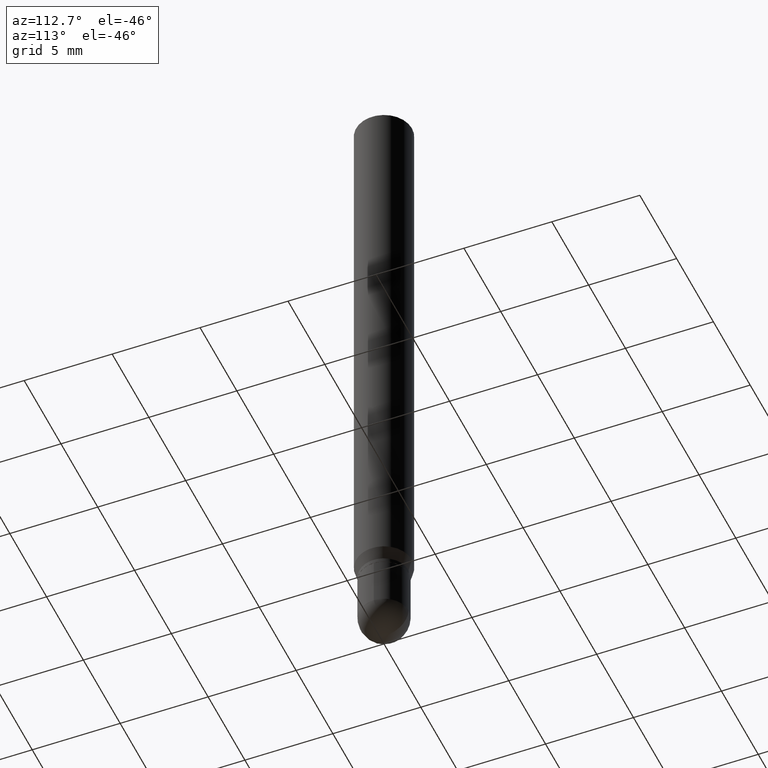
[diagram: clean part render]
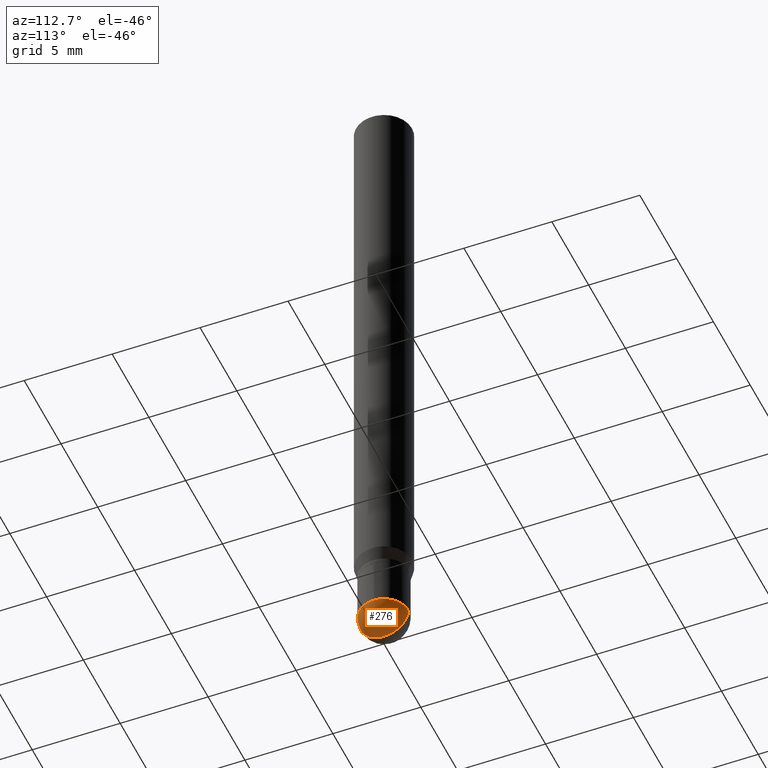
[diagram: same view with one face highlighted and labeled with its STEP entity id]
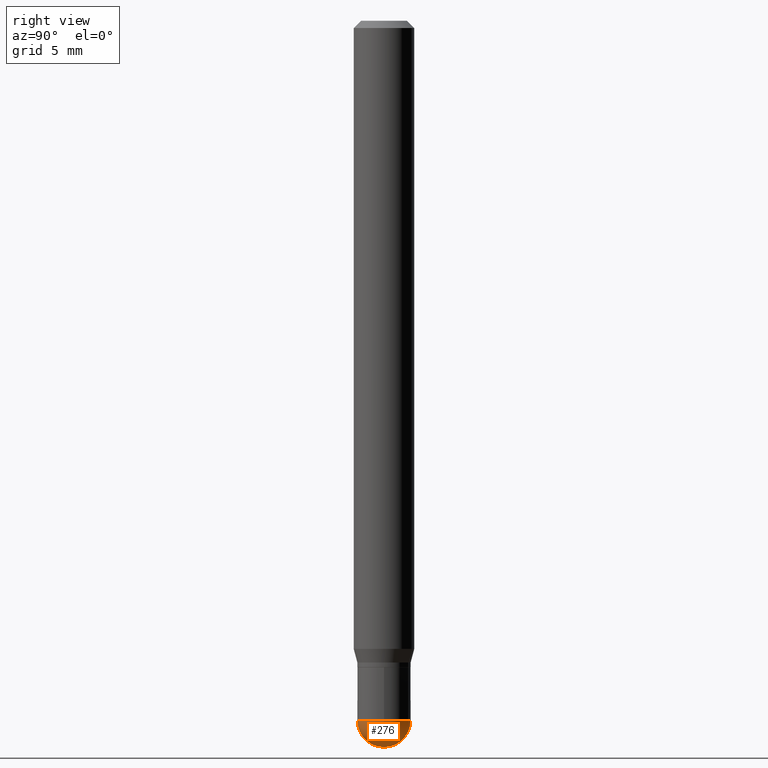
[diagram: same view with one face highlighted and labeled with its STEP entity id]
A machine part, auxiliary view. The second image highlights one B-rep face of the part: STEP entity #276.
A second angle (right view) of the same face is appended — the face is thin or edge-on in the first view.
In plain terms, the highlighted spherical surface has radius 1.397 mm.
Its self-contained STEP definition (entity closure, byte-faithful):
#2 = CIRCLE ( 'NONE', #295, 0.05500000000000000028 ) ;
#3 = AXIS2_PLACEMENT_3D ( 'NONE', #433, #318, #411 ) ;
#13 = VERTEX_POINT ( 'NONE', #342 ) ;
#20 = EDGE_CURVE ( 'NONE', #286, #442, #2, .T. ) ;
#48 = VERTEX_POINT ( 'NONE', #255 ) ;
#67 = AXIS2_PLACEMENT_3D ( 'NONE', #288, #396, #333 ) ;
#100 = DIRECTION ( 'NONE',  ( 1.000000000000000000, -6.982962677686262766E-15, 0.000000000000000000 ) ) ;
#112 = DIRECTION ( 'NONE',  ( -2.445468806185136597E-29, 3.491481338843145583E-15, 1.000000000000000000 ) ) ;
#115 = CIRCLE ( 'NONE', #234, 0.05500000000000000028 ) ;
#122 = ORIENTED_EDGE ( 'NONE', *, *, #259, .F. ) ;
#125 = EDGE_CURVE ( 'NONE', #442, #13, #115, .T. ) ;
#129 = EDGE_LOOP ( 'NONE', ( #122, #175, #280, #490 ) ) ;
#175 = ORIENTED_EDGE ( 'NONE', *, *, #261, .T. ) ;
#180 = DIRECTION ( 'NONE',  ( -2.445468806185136597E-29, 3.491481338843145583E-15, 1.000000000000000000 ) ) ;
#181 = CARTESIAN_POINT ( 'NONE',  ( 0.05500000000000000028, -5.237222008264716599E-15, -1.445000000000000062 ) ) ;
#234 = AXIS2_PLACEMENT_3D ( 'NONE', #274, #112, #511 ) ;
#237 = DIRECTION ( 'NONE',  ( 7.105427357601000281E-15, 1.000000000000000000, 0.000000000000000000 ) ) ;
#253 = AXIS2_PLACEMENT_3D ( 'NONE', #476, #450, #237 ) ;
#255 = CARTESIAN_POINT ( 'NONE',  ( 3.661148087391975640E-29, -5.247325344357685057E-15, -1.500000000000000222 ) ) ;
#259 = EDGE_CURVE ( 'NONE', #48, #286, #272, .T. ) ;
#261 = EDGE_CURVE ( 'NONE', #48, #13, #409, .T. ) ;
#272 = CIRCLE ( 'NONE', #3, 0.05500000000000005579 ) ;
#274 = CARTESIAN_POINT ( 'NONE',  ( 3.533702424937522517E-29, -5.045190534628345684E-15, -1.445000000000000062 ) ) ;
#276 = ADVANCED_FACE ( 'NONE', ( #369 ), #278, .T. ) ;
#278 = SPHERICAL_SURFACE ( 'NONE', #67, 0.05500000000000005579 ) ;
#280 = ORIENTED_EDGE ( 'NONE', *, *, #125, .F. ) ;
#286 = VERTEX_POINT ( 'NONE', #405 ) ;
#288 = CARTESIAN_POINT ( 'NONE',  ( 3.528999010347036160E-29, -5.051926092023656149E-15, -1.445000000000000062 ) ) ;
#295 = AXIS2_PLACEMENT_3D ( 'NONE', #452, #180, #100 ) ;
#318 = DIRECTION ( 'NONE',  ( -1.000000000000000000, 6.982962677686265922E-15, -4.883557194083112340E-29 ) ) ;
#333 = DIRECTION ( 'NONE',  ( -6.982962677686266711E-15, -1.000000000000000000, 4.966996352116837554E-15 ) ) ;
#342 = CARTESIAN_POINT ( 'NONE',  ( 3.907985046680906029E-16, 0.05499999999999497652, -1.445000000000000284 ) ) ;
#369 = FACE_OUTER_BOUND ( 'NONE', #129, .T. ) ;
#396 = DIRECTION ( 'NONE',  ( 1.000000000000000000, -6.982962677686266711E-15, 4.883557194083112340E-29 ) ) ;
#405 = CARTESIAN_POINT ( 'NONE',  ( -3.840629472727094859E-16, -0.05500000000000507955, -1.444999999999999840 ) ) ;
#409 = CIRCLE ( 'NONE', #253, 0.05500000000000005579 ) ;
#411 = DIRECTION ( 'NONE',  ( -6.982962677686265922E-15, -1.000000000000000000, 0.000000000000000000 ) ) ;
#433 = CARTESIAN_POINT ( 'NONE',  ( 3.528999010347036160E-29, -5.051926092023656149E-15, -1.445000000000000062 ) ) ;
#442 = VERTEX_POINT ( 'NONE', #181 ) ;
#450 = DIRECTION ( 'NONE',  ( 1.000000000000000000, -7.105427357601001070E-15, 4.926315508542082329E-29 ) ) ;
#452 = CARTESIAN_POINT ( 'NONE',  ( 3.533702424937522517E-29, -5.045190534628345684E-15, -1.445000000000000062 ) ) ;
#476 = CARTESIAN_POINT ( 'NONE',  ( 3.528999010347036160E-29, -5.051926092023656149E-15, -1.445000000000000062 ) ) ;
#490 = ORIENTED_EDGE ( 'NONE', *, *, #20, .F. ) ;
#511 = DIRECTION ( 'NONE',  ( 1.000000000000000000, -6.982962677686262766E-15, 0.000000000000000000 ) ) ;